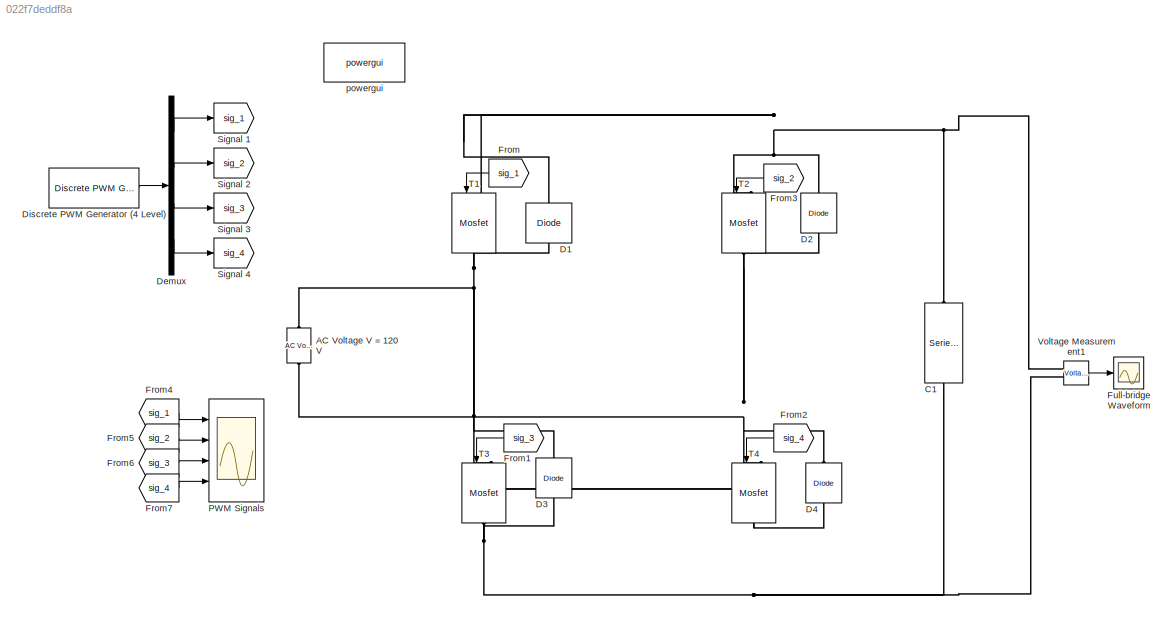
MODEL slx_022f7deddf8a
KIND model
CONFIG AbsTol = auto
CONFIG EnableMultiTasking = off
CONFIG FixedStep = auto
CONFIG MaxStep = auto
CONFIG MinStep = auto
CONFIG RelTol = 1e-3
CONFIG SampleTimeConstraint = Unconstrained
CONFIG Solver = VariableStepAuto
CONFIG SolverName = VariableStepAuto
CONFIG StartTime = 0.0
CONFIG StopTime = 0.2
BLOCK [Reference] AC Voltage V = 120 V  REF=powerlib/Electrical
Sources/AC Voltage Source
  Ports = [0, 0, 0, 0, 0, 1, 1]
  SourceBlock = powerlib/Electrical\nSources/AC Voltage Source
  SourceProductBaseCode = PS
  SourceProductName = Simscape Electrical
  SourceType = AC Voltage Source
BLOCK [Reference] C1  REF=powerlib/Elements/Series RLC Branch
  Ports = [0, 0, 0, 0, 0, 1, 1]
  SourceBlock = powerlib/Elements/Series RLC Branch
  SourceProductBaseCode = PS
  SourceProductName = Simscape Electrical
  SourceType = Series RLC Branch
BLOCK [Reference] D1  REF=powerlib/Power
Electronics/Diode
  Ports = [0, 0, 0, 0, 0, 1, 1]
  SourceBlock = powerlib/Power\nElectronics/Diode
  SourceProductBaseCode = PS
  SourceProductName = Simscape Electrical
  SourceType = Diode
BLOCK [Reference] D2  REF=powerlib/Power
Electronics/Diode
  Ports = [0, 0, 0, 0, 0, 1, 1]
  SourceBlock = powerlib/Power\nElectronics/Diode
  SourceProductBaseCode = PS
  SourceProductName = Simscape Electrical
  SourceType = Diode
BLOCK [Reference] D3  REF=powerlib/Power
Electronics/Diode
  Ports = [0, 0, 0, 0, 0, 1, 1]
  SourceBlock = powerlib/Power\nElectronics/Diode
  SourceProductBaseCode = PS
  SourceProductName = Simscape Electrical
  SourceType = Diode
BLOCK [Reference] D4  REF=powerlib/Power
Electronics/Diode
  Ports = [0, 0, 0, 0, 0, 1, 1]
  SourceBlock = powerlib/Power\nElectronics/Diode
  SourceProductBaseCode = PS
  SourceProductName = Simscape Electrical
  SourceType = Diode
BLOCK [Demux] Demux
  DisplayOption = bar
  Ports = [1, 4]
BLOCK [Reference] Discrete PWM Generator (4 Level)  REF=powerlib_extras/Discrete 
Control Blocks/Discrete
PWM Generator
  Ports = [0, 1]
  SourceBlock = powerlib_extras/Discrete \nControl Blocks/Discrete\nPWM Generator
  SourceProductBaseCode = PS
  SourceProductName = Simscape Electrical
  SourceType = Discrete PWM Generator
BLOCK [From] From
  GotoTag = sig_1
  IconDisplay = Signal name
BLOCK [From] From1
  GotoTag = sig_3
  IconDisplay = Signal name
BLOCK [From] From2
  GotoTag = sig_4
  IconDisplay = Signal name
BLOCK [From] From3
  GotoTag = sig_2
  IconDisplay = Signal name
BLOCK [From] From4
  GotoTag = sig_1
  IconDisplay = Signal name
BLOCK [From] From5
  GotoTag = sig_2
  IconDisplay = Signal name
BLOCK [From] From6
  GotoTag = sig_3
  IconDisplay = Signal name
BLOCK [From] From7
  GotoTag = sig_4
  IconDisplay = Signal name
BLOCK [Scope] Full-bridge Waveform
  Floating = off
  NumInputPorts = 1
  Ports = [1]
  ScopeSpecificationString = Simulink.scopes.TimeScopeBlockCfg('CurrentConfiguration', extmgr.ConfigurationSet(extmgr.Configuration('Core','General UI',true),extmgr.Configuration('Core','Source UI',true),extmgr.Configuration('Sources','WiredSimulink',true),extmgr.Configuration('Visuals','Time Domain',true,'SerializedDisplays',{struct('MinYLimReal','-188.51156','MaxYLimReal','1696.604','YLabelReal','','MinYLimMag',' 0.00000','...<+1449ch>
BLOCK [Scope] PWM Signals
  Floating = off
  NumInputPorts = 4
  Ports = [4]
  ScopeSpecificationString = Simulink.scopes.TimeScopeBlockCfg('CurrentConfiguration', extmgr.ConfigurationSet(extmgr.Configuration('Core','General UI',true),extmgr.Configuration('Core','Source UI',true),extmgr.Configuration('Sources','WiredSimulink',true,'DataLoggingVariableName','ScopeData1'),extmgr.Configuration('Visuals','Time Domain',true,'SerializedDisplays',{struct('MinYLimReal','-0.125','MaxYLimReal','1.125','YLabelRe...<+3406ch>
BLOCK [Goto] Signal 1
  GotoTag = sig_1
  IconDisplay = Signal name
BLOCK [Goto] Signal 2
  GotoTag = sig_2
  IconDisplay = Signal name
BLOCK [Goto] Signal 3
  GotoTag = sig_3
  IconDisplay = Signal name
BLOCK [Goto] Signal 4
  GotoTag = sig_4
  IconDisplay = Signal name
BLOCK [Reference] T1  REF=powerlib/Power
Electronics/Mosfet
  Ports = [1, 0, 0, 0, 0, 1, 1]
  SourceBlock = powerlib/Power\nElectronics/Mosfet
  SourceProductBaseCode = PS
  SourceProductName = Simscape Electrical
  SourceType = Mosfet
BLOCK [Reference] T2  REF=powerlib/Power
Electronics/Mosfet
  Ports = [1, 0, 0, 0, 0, 1, 1]
  SourceBlock = powerlib/Power\nElectronics/Mosfet
  SourceProductBaseCode = PS
  SourceProductName = Simscape Electrical
  SourceType = Mosfet
BLOCK [Reference] T3  REF=powerlib/Power
Electronics/Mosfet
  Ports = [1, 0, 0, 0, 0, 1, 1]
  SourceBlock = powerlib/Power\nElectronics/Mosfet
  SourceProductBaseCode = PS
  SourceProductName = Simscape Electrical
  SourceType = Mosfet
BLOCK [Reference] T4  REF=powerlib/Power
Electronics/Mosfet
  Ports = [1, 0, 0, 0, 0, 1, 1]
  SourceBlock = powerlib/Power\nElectronics/Mosfet
  SourceProductBaseCode = PS
  SourceProductName = Simscape Electrical
  SourceType = Mosfet
BLOCK [Reference] Voltage Measurement1  REF=powerlib/Measurements/Voltage Measurement
  Ports = [0, 1, 0, 0, 0, 2]
  SourceBlock = powerlib/Measurements/Voltage Measurement
  SourceProductBaseCode = PS
  SourceProductName = Simscape Electrical
  SourceType = Voltage Measurement
  UserDataPersistent = on
BLOCK [Reference] powergui  REF=powerlib/powergui
  Ports = []
  Priority = 1
  SourceBlock = powerlib/powergui
  SourceProductBaseCode = PS
  SourceProductName = Simscape Electrical
  SourceType = PSB option menu block
LINE Demux:1 -> Signal 1:1
LINE Demux:2 -> Signal 2:1
LINE Demux:3 -> Signal 3:1
LINE Demux:4 -> Signal 4:1
LINE Discrete PWM Generator (4 Level):1 -> Demux:1
LINE From1:1 -> T3:1
LINE From2:1 -> T4:1
LINE From3:1 -> T2:1
LINE From4:1 -> PWM Signals:1
LINE From5:1 -> PWM Signals:2
LINE From6:1 -> PWM Signals:3
LINE From7:1 -> PWM Signals:4
LINE From:1 -> T1:1
LINE Voltage Measurement1:1 -> Full-bridge Waveform:1
PNET net1: AC Voltage V = 120 V:LConn1 -- D2:LConn1 -- D4:RConn1 -- T2:RConn1 -- T4:LConn1
PNET net2: AC Voltage V = 120 V:RConn1 -- D1:LConn1 -- D3:RConn1 -- T1:RConn1 -- T3:LConn1
PNET net3: C1:LConn1 -- D1:RConn1 -- D2:RConn1 -- T1:LConn1 -- T2:LConn1 -- Voltage Measurement1:LConn1
PNET net4: C1:RConn1 -- D3:LConn1 -- D4:LConn1 -- T3:RConn1 -- T4:RConn1 -- Voltage Measurement1:LConn2
note: PNET lines group multi-terminal physical nets as a canonical sorted terminal list (undirected conserving connections); 2-terminal nets keep the pairwise PLINE form
